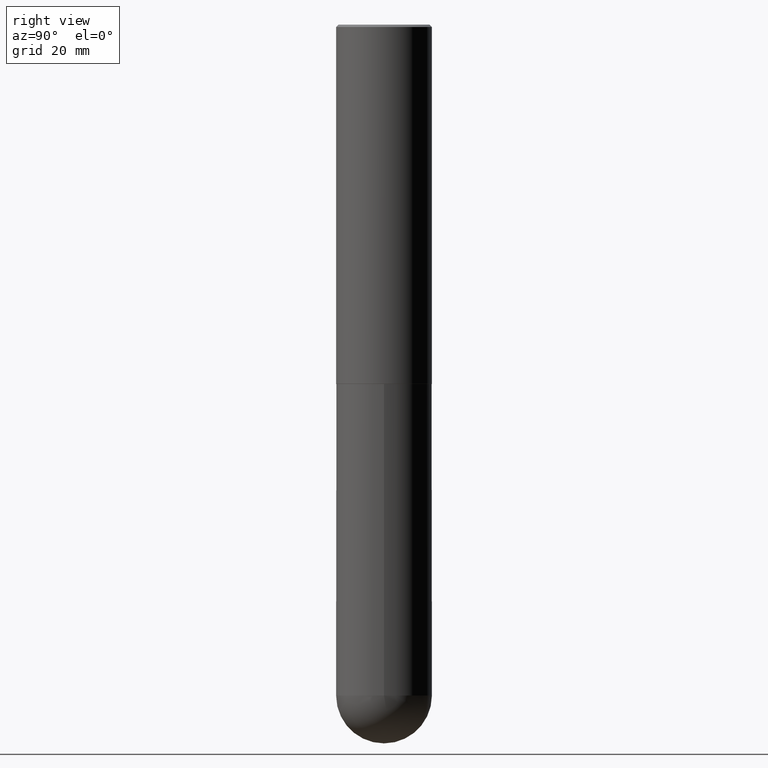
[diagram: clean part render]
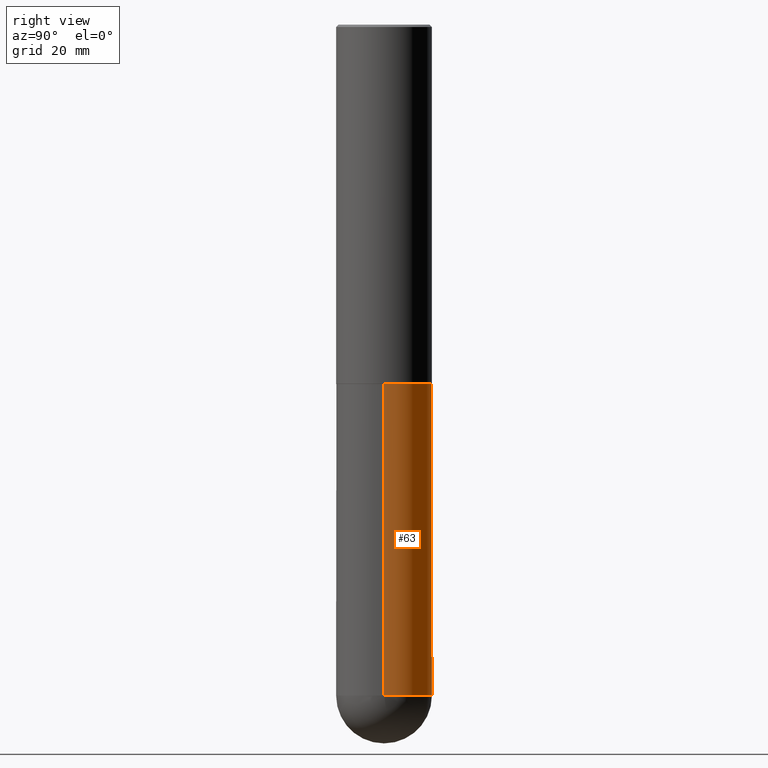
[diagram: same view with one face highlighted and labeled with its STEP entity id]
A machine part, right view. The second image highlights one B-rep face of the part: STEP entity #63.
In plain terms, the highlighted cylindrical surface (partial cylindrical patch) has radius 10 mm, axis along (-0, 0, 1).
Its self-contained STEP definition (entity closure, byte-faithful):
#1 = DIRECTION ( 'NONE',  ( 1.000000000000000000, -6.982962677686266711E-15, 0.000000000000000000 ) ) ;
#6 = VERTEX_POINT ( 'NONE', #89 ) ;
#7 = DIRECTION ( 'NONE',  ( -2.445468806185136597E-29, 3.491481338843145583E-15, 1.000000000000000000 ) ) ;
#9 = CARTESIAN_POINT ( 'NONE',  ( 0.3937000000000001054, -2.749192406205084005E-15, 1.919750796630860452E-29 ) ) ;
#15 = CARTESIAN_POINT ( 'NONE',  ( -0.3937000000000001054, 2.797406750687515181E-15, -1.936584745033357016E-29 ) ) ;
#23 = VECTOR ( 'NONE', #104, 39.37007874015748143 ) ;
#25 = DIRECTION ( 'NONE',  ( -2.445468806185136597E-29, 3.491481338843145583E-15, 1.000000000000000000 ) ) ;
#35 = ORIENTED_EDGE ( 'NONE', *, *, #195, .T. ) ;
#37 = EDGE_CURVE ( 'NONE', #293, #214, #70, .T. ) ;
#41 = ORIENTED_EDGE ( 'NONE', *, *, #94, .T. ) ;
#45 = LINE ( 'NONE', #15, #23 ) ;
#63 = ADVANCED_FACE ( 'NONE', ( #67 ), #66, .T. ) ;
#66 = CYLINDRICAL_SURFACE ( 'NONE', #397, 0.3937000000000001054 ) ;
#67 = FACE_OUTER_BOUND ( 'NONE', #306, .T. ) ;
#70 = LINE ( 'NONE', #9, #377 ) ;
#71 = CIRCLE ( 'NONE', #310, 0.3937000000000001054 ) ;
#80 = CIRCLE ( 'NONE', #237, 0.3937000000000001054 ) ;
#89 = CARTESIAN_POINT ( 'NONE',  ( 2.749192406205216928E-15, 0.3936999999999805655, -5.511800000000000921 ) ) ;
#94 = EDGE_CURVE ( 'NONE', #181, #118, #45, .T. ) ;
#95 = CARTESIAN_POINT ( 'NONE',  ( -0.3937000000000001054, -1.197941514563138553E-14, -5.511800000000000033 ) ) ;
#104 = DIRECTION ( 'NONE',  ( -2.445468806185136877E-29, 3.491481338843145188E-15, 1.000000000000000000 ) ) ;
#110 = CARTESIAN_POINT ( 'NONE',  ( -0.3937000000000000499, -1.197941514563138553E-14, -2.952700000000000102 ) ) ;
#118 = VERTEX_POINT ( 'NONE', #110 ) ;
#126 = DIRECTION ( 'NONE',  ( 1.000000000000000000, -6.982962677686267499E-15, 0.000000000000000000 ) ) ;
#136 = CARTESIAN_POINT ( 'NONE',  ( 0.3937000000000001054, -1.752601430252398275E-14, -5.511800000000000033 ) ) ;
#171 = CIRCLE ( 'NONE', #324, 0.3937000000000000499 ) ;
#181 = VERTEX_POINT ( 'NONE', #95 ) ;
#195 = EDGE_CURVE ( 'NONE', #293, #6, #71, .T. ) ;
#198 = EDGE_CURVE ( 'NONE', #214, #118, #171, .T. ) ;
#214 = VERTEX_POINT ( 'NONE', #258 ) ;
#229 = DIRECTION ( 'NONE',  ( -2.445468806185136877E-29, 3.491481338843145188E-15, 1.000000000000000000 ) ) ;
#237 = AXIS2_PLACEMENT_3D ( 'NONE', #275, #410, #284 ) ;
#258 = CARTESIAN_POINT ( 'NONE',  ( 0.3937000000000000499, -1.305848935540723823E-14, -2.952700000000000102 ) ) ;
#261 = CARTESIAN_POINT ( 'NONE',  ( 0.000000000000000000, 0.000000000000000000, 0.000000000000000000 ) ) ;
#266 = DIRECTION ( 'NONE',  ( -2.445468806185136597E-29, 3.491481338843145583E-15, 1.000000000000000000 ) ) ;
#275 = CARTESIAN_POINT ( 'NONE',  ( 1.347893496593123646E-28, -1.924434684343564878E-14, -5.511800000000000033 ) ) ;
#284 = DIRECTION ( 'NONE',  ( 1.000000000000000000, -6.982962677686266711E-15, 0.000000000000000000 ) ) ;
#293 = VERTEX_POINT ( 'NONE', #136 ) ;
#306 = EDGE_LOOP ( 'NONE', ( #393, #41, #354, #357, #35 ) ) ;
#310 = AXIS2_PLACEMENT_3D ( 'NONE', #311, #25, #1 ) ;
#311 = CARTESIAN_POINT ( 'NONE',  ( 1.347893496593123646E-28, -1.924434684343564878E-14, -5.511800000000000033 ) ) ;
#323 = CARTESIAN_POINT ( 'NONE',  ( 7.220735744022852519E-29, -1.030929694920215502E-14, -2.952700000000000102 ) ) ;
#324 = AXIS2_PLACEMENT_3D ( 'NONE', #323, #7, #126 ) ;
#332 = EDGE_CURVE ( 'NONE', #6, #181, #80, .T. ) ;
#339 = DIRECTION ( 'NONE',  ( 1.000000000000000000, -6.982962677686266711E-15, 4.876176775795935793E-29 ) ) ;
#354 = ORIENTED_EDGE ( 'NONE', *, *, #198, .F. ) ;
#357 = ORIENTED_EDGE ( 'NONE', *, *, #37, .F. ) ;
#377 = VECTOR ( 'NONE', #229, 39.37007874015748143 ) ;
#393 = ORIENTED_EDGE ( 'NONE', *, *, #332, .T. ) ;
#397 = AXIS2_PLACEMENT_3D ( 'NONE', #261, #266, #339 ) ;
#410 = DIRECTION ( 'NONE',  ( -2.445468806185136597E-29, 3.491481338843145583E-15, 1.000000000000000000 ) ) ;